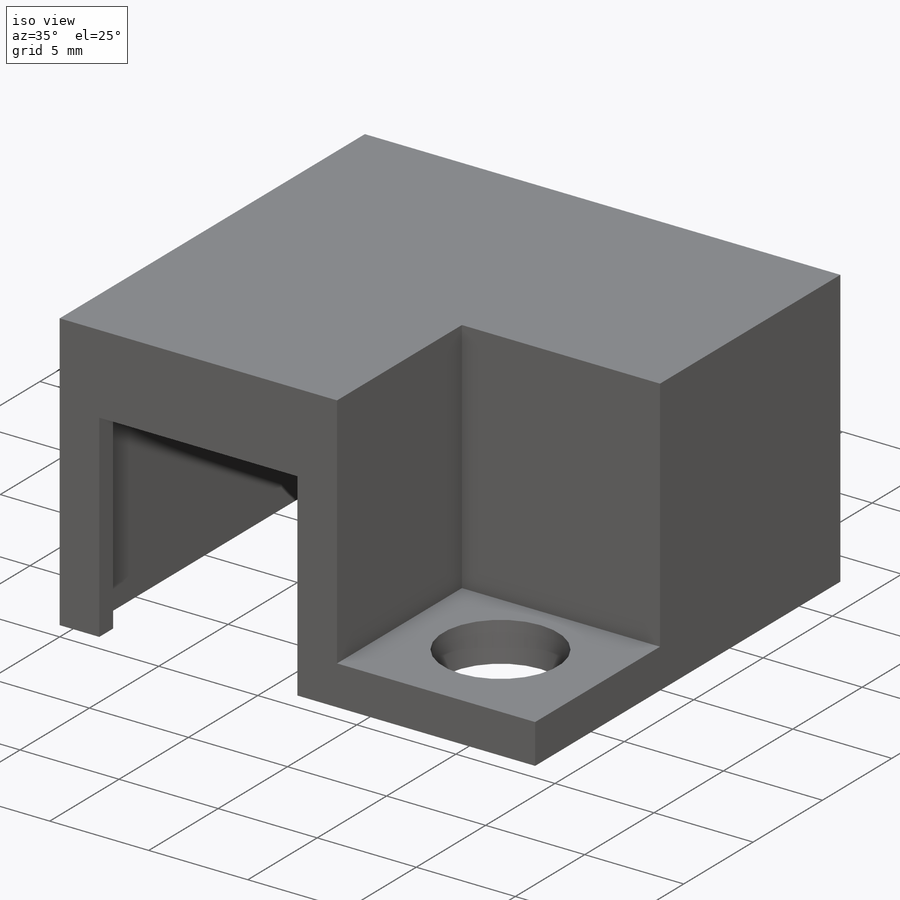
[diagram: iso view]
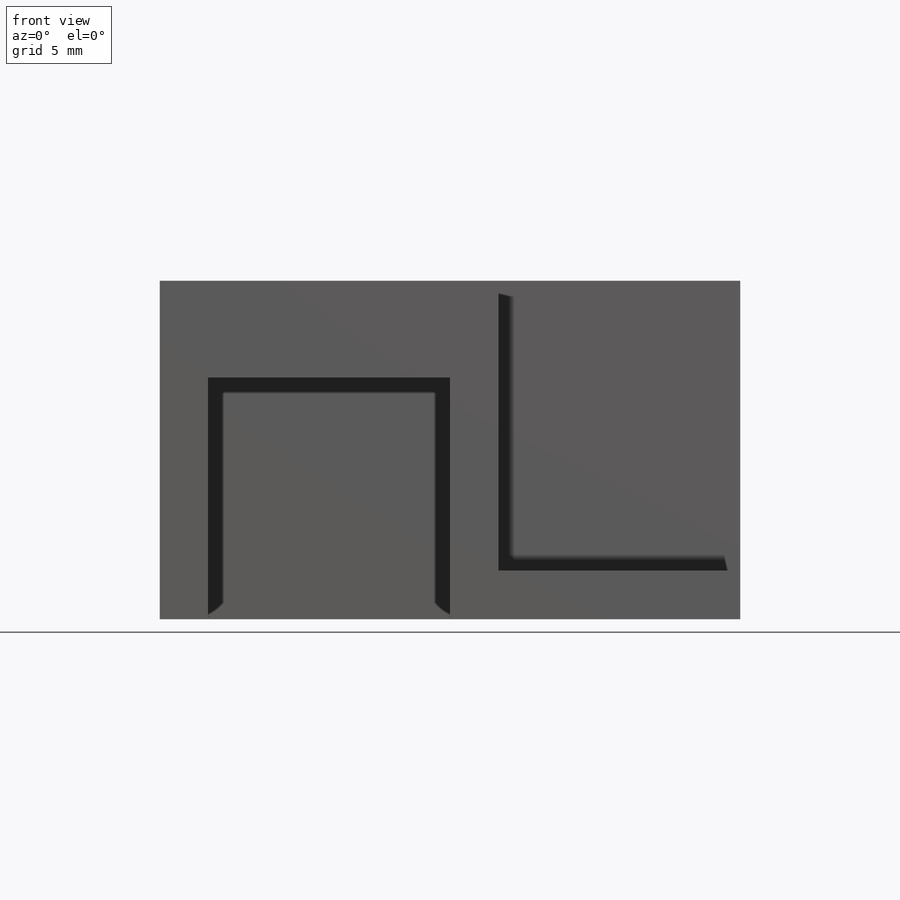
[diagram: front view]
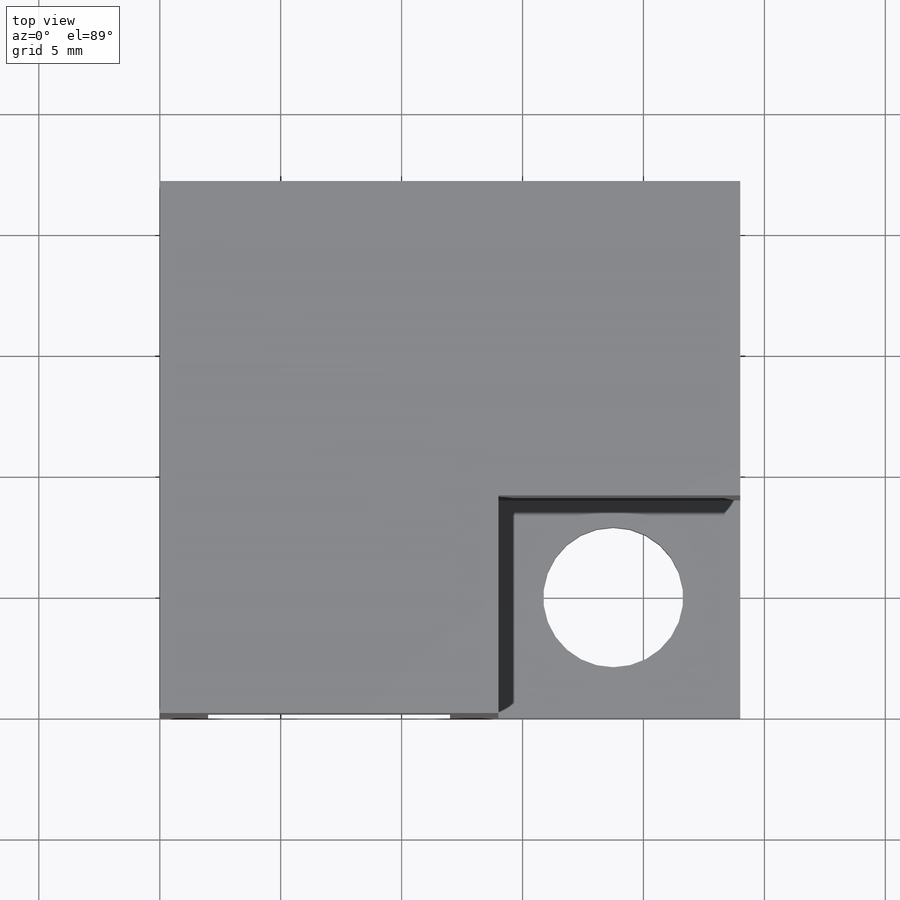
[diagram: top view]
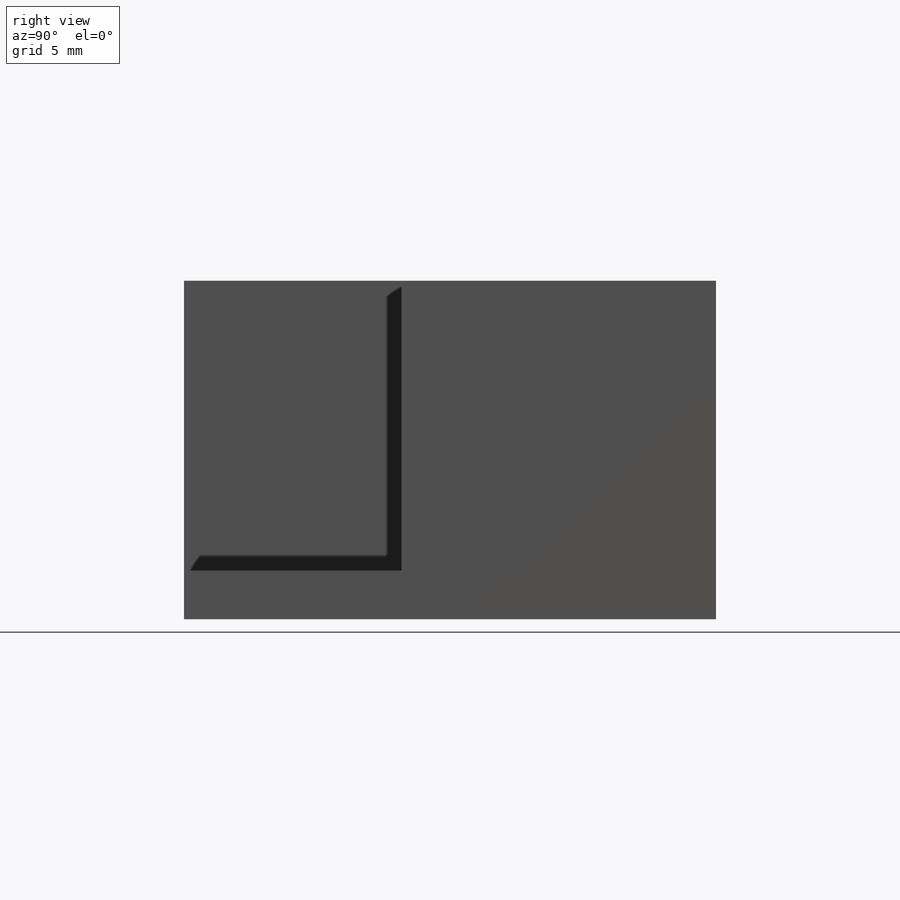
[diagram: right view]
SOLIDWORKS PART (.sldprt)
format: sldprt  version: not decoded by parser v0  size: 244,736 bytes
history: native  units: mm
features: sketch x7, cut_extrude x4, plane x3, extrude x3, material x1 (+9 scaffold rows collapsed)
feature tree (27):
  scaffold x9  (default folders/planes/origin — collapsed)
  material  "Matériau <non spécifié>"
  plane  "Plan de face"
  plane  "Plan de dessus"
  plane  "Plan de droite"
  sketch  "Esquisse1"  dims[D1=24.0mm D2=22.0mm]
  extrude  "Boss.-Extru.1"  Depth=2mm
  sketch  "Esquisse2"  dims[D1=1.0mm D2=1.0mm D3=22.0mm D4=11.0mm D5=10.0mm D6=9.0mm]
  cut_extrude  "Enlèv. mat.-Extru.1"  Depth=2mm
  sketch  "Esquisse3"  dims[D1=3.5mm D2=5.0mm D3=7.0mm]
  cut_extrude  "Enlèv. mat.-Extru.2"  Depth=2mm
  sketch  "Esquisse4"
  cut_extrude  "Enlèv. mat.-Extru.3"  Depth=2mm
  sketch  "Esquisse5"  dims[D1=1.0mm D2=1.0mm]
  extrude  "Boss.-Extru.2"  Depth=10mm
  sketch  "Esquisse6"  dims[D1=2.0mm D2=10.0mm]
  cut_extrude  "Enlèv. mat.-Extru.4"  Depth=10mm
  sketch  "Esquisse8"
  extrude  "Boss.-Extru.3"  Depth=2mm
decode coverage: 12 of 14 modeling features carry decoded parameters
note: suppression state not decoded; provenance and decode notes live in map.json
